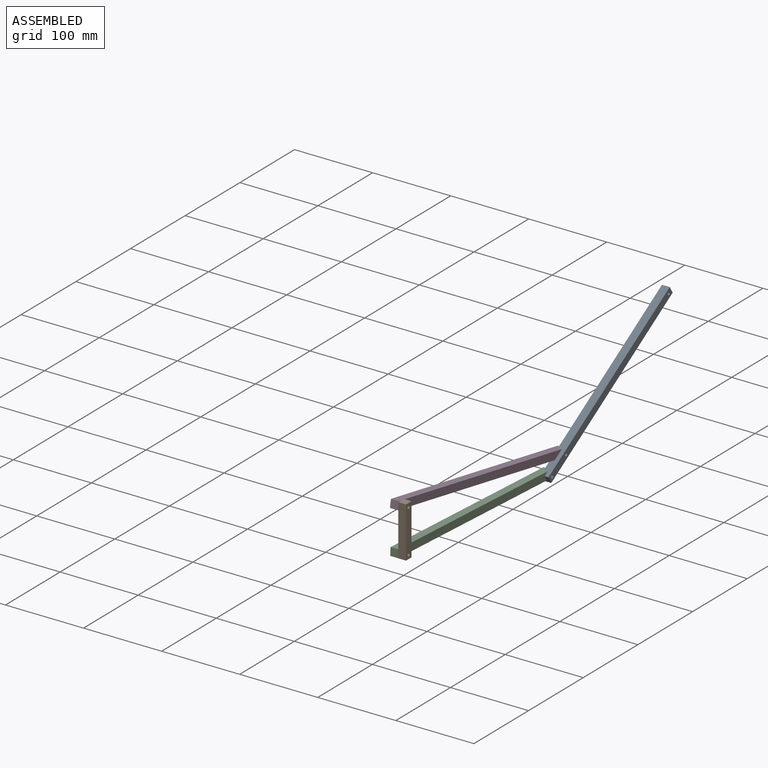
[diagram: assembled view]
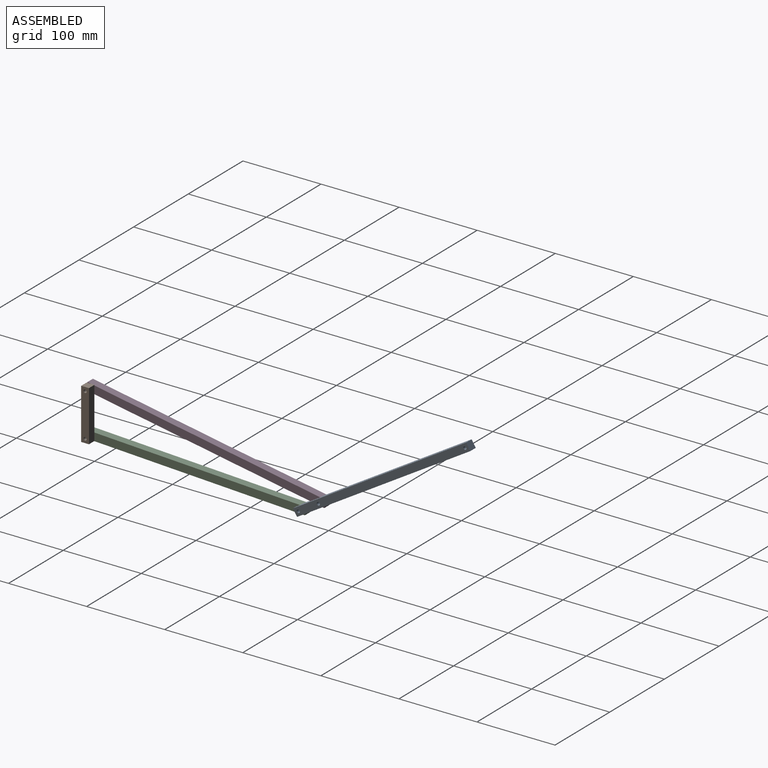
[diagram: assembled view, second angle]
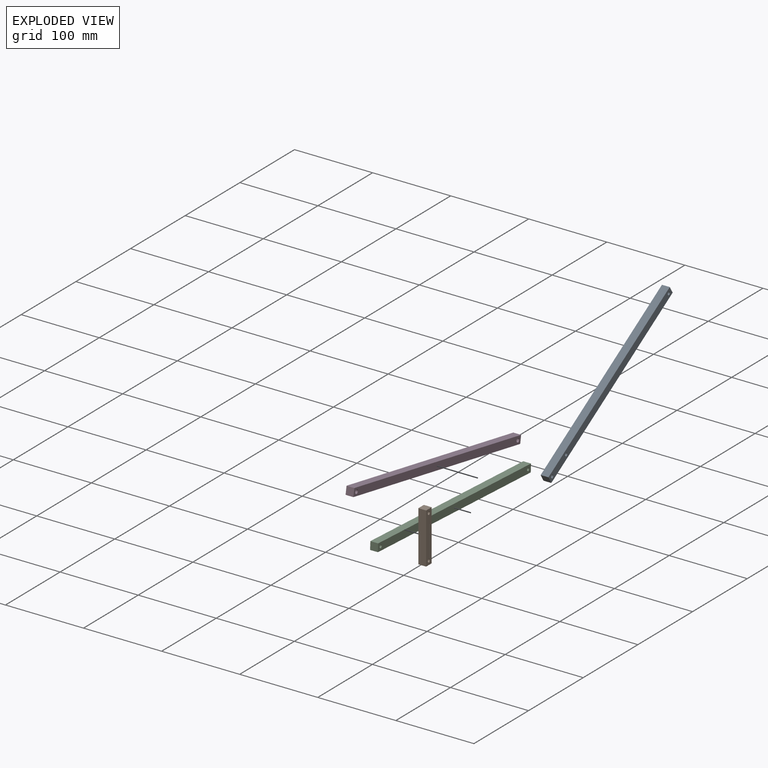
[diagram: exploded view]
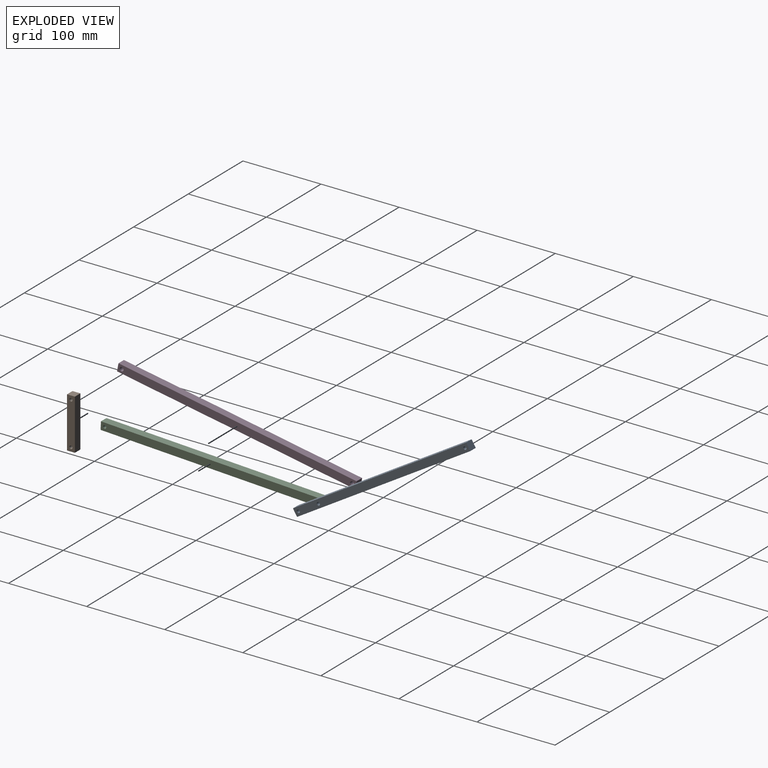
[diagram: exploded view, second angle]
ASSEMBLY  parts=4 mates=4
PART A: 9 faces, bbox 260x10x10 mm
  f0: plane 260x10mm, normal (0,0,1), area 2600mm2, adj f1,f6,f7,f8
  f1: plane 10x10mm, normal (-1,0,0), area 100mm2, adj f0,f2,f7,f8
  f2: plane 260x10mm, normal (0,0,-1), area 2600mm2, adj f1,f6,f7,f8
  f3: cylinder r=2mm len=10mm, axis (0,1,0), area 125.7mm2, adj f7,f8
  f4: cylinder r=2mm len=10mm, axis (0,1,0), area 125.7mm2, adj f7,f8
  f5: cylinder r=2mm len=10mm, axis (0,1,0), area 125.7mm2, adj f7,f8
  f6: plane 10x10mm, normal (1,0,0), area 100mm2, adj f0,f2,f7,f8
  f7: plane 260x10mm, normal (0,-1,0), area 2562.3mm2, adj f0,f1,f2,f3,f4,f5,f6
  f8: plane 260x10mm, normal (0,1,0), area 2562.3mm2, adj f0,f1,f2,f3,f4,f5,f6
PART B: 8 faces, bbox 65x10x10 mm
  f0: plane 65x10mm, normal (0,0,1), area 650mm2, adj f1,f5,f6,f7
  f1: plane 10x10mm, normal (-1,0,0), area 100mm2, adj f0,f2,f6,f7
  f2: plane 65x10mm, normal (0,0,-1), area 650mm2, adj f1,f5,f6,f7
  f3: cylinder r=2mm len=10mm, axis (0,1,0), area 125.7mm2, adj f6,f7
  f4: cylinder r=2mm len=10mm, axis (0,1,0), area 125.7mm2, adj f6,f7
  f5: plane 10x10mm, normal (1,0,0), area 100mm2, adj f0,f2,f6,f7
  f6: plane 65x10mm, normal (0,-1,0), area 624.9mm2, adj f0,f1,f2,f3,f4,f5
  f7: plane 65x10mm, normal (0,1,0), area 624.9mm2, adj f0,f1,f2,f3,f4,f5
PART C: 8 faces, bbox 280x10x10 mm
  f0: plane 280x10mm, normal (0,0,1), area 2800mm2, adj f1,f5,f6,f7
  f1: plane 10x10mm, normal (-1,0,0), area 100mm2, adj f0,f2,f6,f7
  f2: plane 280x10mm, normal (0,0,-1), area 2800mm2, adj f1,f5,f6,f7
  f3: cylinder r=2mm len=10mm, axis (0,1,0), area 125.7mm2, adj f6,f7
  f4: cylinder r=2mm len=10mm, axis (0,1,0), area 125.7mm2, adj f6,f7
  f5: plane 10x10mm, normal (1,0,0), area 100mm2, adj f0,f2,f6,f7
  f6: plane 280x10mm, normal (0,-1,0), area 2774.9mm2, adj f0,f1,f2,f3,f4,f5
  f7: plane 280x10mm, normal (0,1,0), area 2774.9mm2, adj f0,f1,f2,f3,f4,f5
PART D: 8 faces, bbox 310x10x10 mm
  f0: plane 310x10mm, normal (0,0,1), area 3100mm2, adj f1,f5,f6,f7
  f1: plane 10x10mm, normal (-1,0,0), area 100mm2, adj f0,f2,f6,f7
  f2: plane 310x10mm, normal (0,0,-1), area 3100mm2, adj f1,f5,f6,f7
  f3: cylinder r=2.5mm len=10mm, axis (0,1,0), area 157.1mm2, adj f6,f7
  f4: cylinder r=2.5mm len=10mm, axis (0,1,0), area 157.1mm2, adj f6,f7
  f5: plane 10x10mm, normal (1,0,0), area 100mm2, adj f0,f2,f6,f7
  f6: plane 310x10mm, normal (0,-1,0), area 3060.7mm2, adj f0,f1,f2,f3,f4,f5
  f7: plane 310x10mm, normal (0,1,0), area 3060.7mm2, adj f0,f1,f2,f3,f4,f5
PLACE A rot(axis=(0.26,0.26,-0.93),94.2deg) t=(5,478,121.49)mm
PLACE B rot(axis=(-0.58,-0.58,-0.58),120deg) t=(10,-5,5)mm
PLACE C rot(axis=(-0.03,0.03,1),90deg) t=(-10,-5,5)mm
PLACE D rot(axis=(-0.09,0.09,0.99),90.5deg) t=(-10,-5,60)mm
MATE revolute B.f3 <-> C.f3  axis (-1,0,0) through (0,-5,5)mm
MATE cylindrical A.f5 <-> C.f4  axis (-1,0,0) through (-5,264.65,-8.82)mm
MATE revolute D.f4 <-> A.f4  axis (-1,0,0) through (-5,290.25,6.82)mm
MATE revolute D.f3 <-> B.f4  axis (1,0,0) through (0,-5,60)mm
